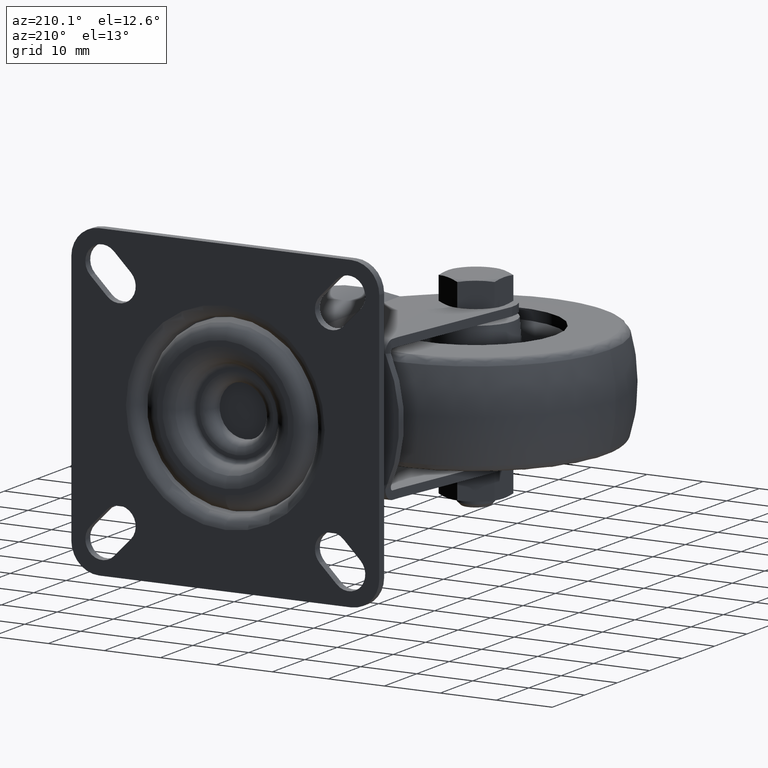
[diagram: clean part render]
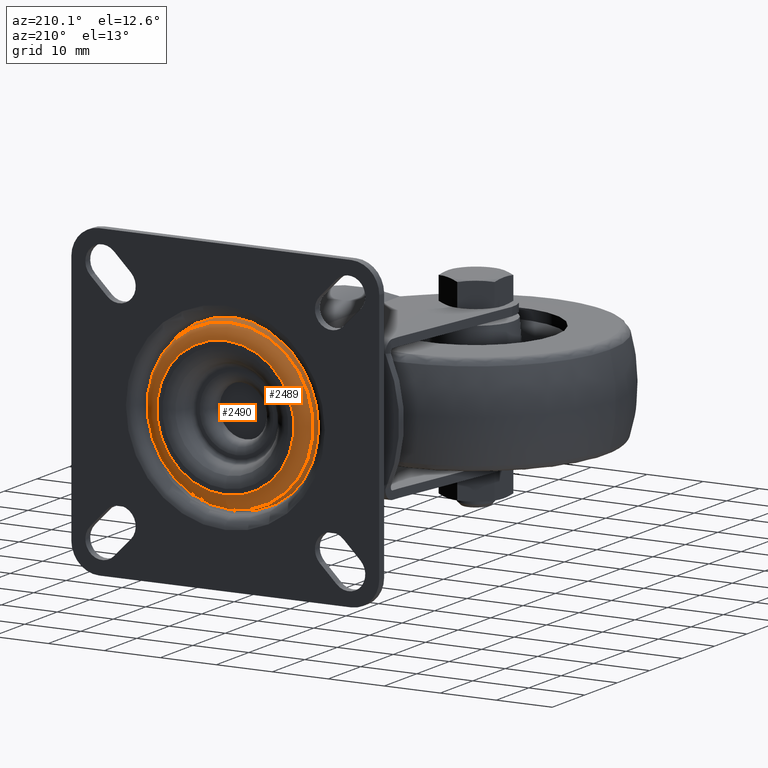
[diagram: same view with one multi-face feature highlighted, each face labeled with its STEP entity id]
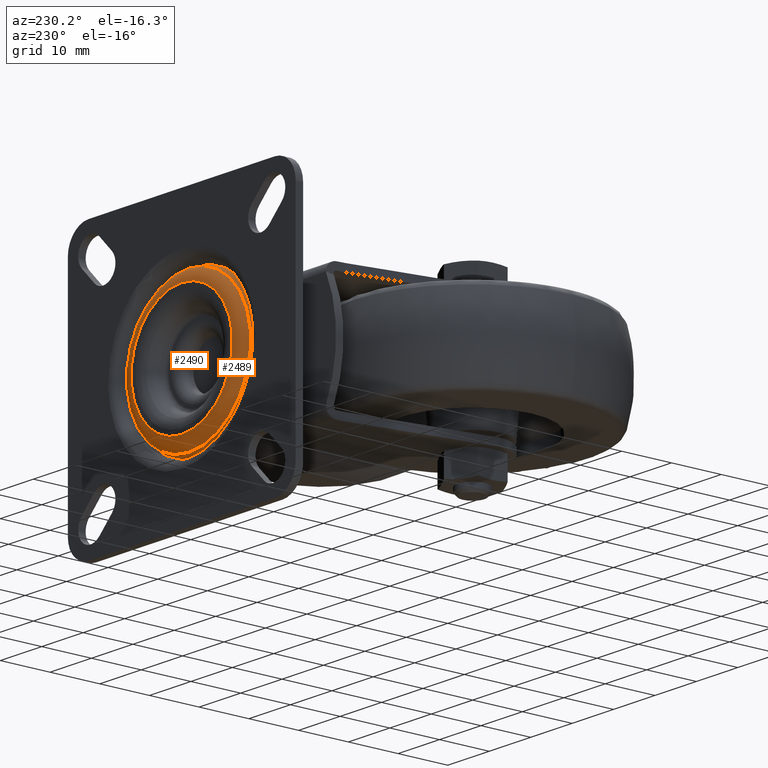
[diagram: same view with one multi-face feature highlighted, each face labeled with its STEP entity id]
A machine part, auxiliary view. The highlighted faces form ONE feature: a constant-radius fillet chain: 2 tangent blend faces with common blend radius 3.215 mm. The faces share edges in the B-rep.
A second angle (auxiliary view) of the same feature is appended — it is thin or edge-on in the first view.
Their STEP definitions:
[1] entity #2489 (Torus):
#280=TOROIDAL_SURFACE('',#2736,11.87,3.42999999999996);
#413=FACE_BOUND('',#740,.T.);
#537=FACE_OUTER_BOUND('',#739,.T.);
#739=EDGE_LOOP('',(#1834));
#740=EDGE_LOOP('',(#1835));
#972=CIRCLE('',#2735,15.2996356265831);
#973=CIRCLE('',#2737,14.8313091664405);
#1175=VERTEX_POINT('',#4149);
#1176=VERTEX_POINT('',#4152);
#1435=EDGE_CURVE('',#1175,#1175,#972,.T.);
#1436=EDGE_CURVE('',#1176,#1176,#973,.T.);
#1834=ORIENTED_EDGE('',*,*,#1436,.T.);
#1835=ORIENTED_EDGE('',*,*,#1435,.F.);
#2489=ADVANCED_FACE('',(#537,#413),#280,.T.);
#2735=AXIS2_PLACEMENT_3D('',#4150,#3266,#3267);
#2736=AXIS2_PLACEMENT_3D('',#4151,#3268,#3269);
#2737=AXIS2_PLACEMENT_3D('',#4153,#3270,#3271);
#3266=DIRECTION('center_axis',(0.,-1.,0.));
#3267=DIRECTION('ref_axis',(0.,0.,-1.));
#3268=DIRECTION('center_axis',(0.,-1.,0.));
#3269=DIRECTION('ref_axis',(0.,0.,-1.));
#3270=DIRECTION('center_axis',(0.,-1.,0.));
#3271=DIRECTION('ref_axis',(0.,0.,-1.));
#4149=CARTESIAN_POINT('',(21.,37.7300053115659,-15.2996356265831));
#4150=CARTESIAN_POINT('Origin',(21.,37.7300053115659,0.));
#4151=CARTESIAN_POINT('Origin',(21.,37.78,0.));
#4152=CARTESIAN_POINT('',(21.,39.5107651547091,-14.8313091664405));
#4153=CARTESIAN_POINT('Origin',(21.,39.5107651547091,0.));
[2] entity #2490 (Torus):
#281=TOROIDAL_SURFACE('',#2738,12.2394780285543,2.99999999999998);
#414=FACE_BOUND('',#742,.T.);
#538=FACE_OUTER_BOUND('',#741,.T.);
#741=EDGE_LOOP('',(#1836));
#742=EDGE_LOOP('',(#1837));
#973=CIRCLE('',#2737,14.8313091664405);
#974=CIRCLE('',#2739,12.2394780020829);
#1176=VERTEX_POINT('',#4152);
#1177=VERTEX_POINT('',#4155);
#1436=EDGE_CURVE('',#1176,#1176,#973,.T.);
#1437=EDGE_CURVE('',#1177,#1177,#974,.T.);
#1836=ORIENTED_EDGE('',*,*,#1437,.T.);
#1837=ORIENTED_EDGE('',*,*,#1436,.F.);
#2490=ADVANCED_FACE('',(#538,#414),#281,.T.);
#2737=AXIS2_PLACEMENT_3D('',#4153,#3270,#3271);
#2738=AXIS2_PLACEMENT_3D('',#4154,#3272,#3273);
#2739=AXIS2_PLACEMENT_3D('',#4156,#3274,#3275);
#3270=DIRECTION('center_axis',(0.,-1.,0.));
#3271=DIRECTION('ref_axis',(0.,0.,-1.));
#3272=DIRECTION('center_axis',(0.,-1.,0.));
#3273=DIRECTION('ref_axis',(0.,0.,-1.));
#3274=DIRECTION('center_axis',(0.,-1.,0.));
#3275=DIRECTION('ref_axis',(0.,0.,-1.));
#4152=CARTESIAN_POINT('',(21.,39.5107651547091,-14.8313091664405));
#4153=CARTESIAN_POINT('Origin',(21.,39.5107651547091,0.));
#4154=CARTESIAN_POINT('Origin',(21.,38.,0.));
#4155=CARTESIAN_POINT('',(21.,41.,-12.2394780020829));
#4156=CARTESIAN_POINT('Origin',(21.,41.,0.));